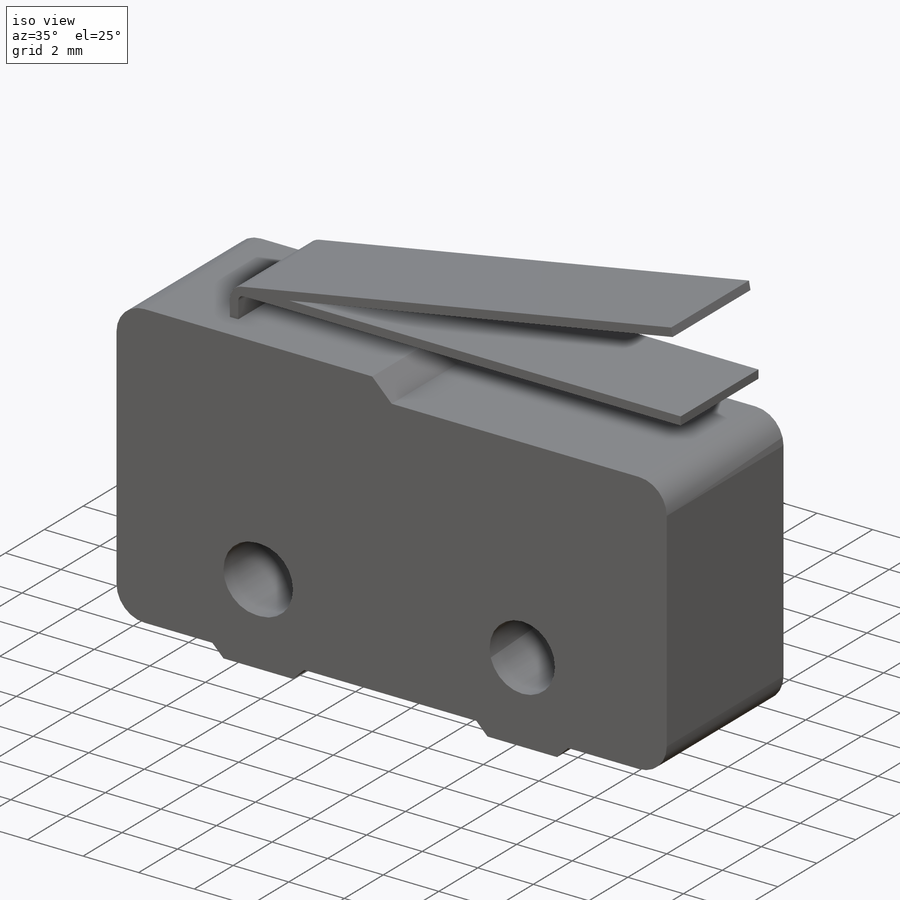
[diagram: iso view]
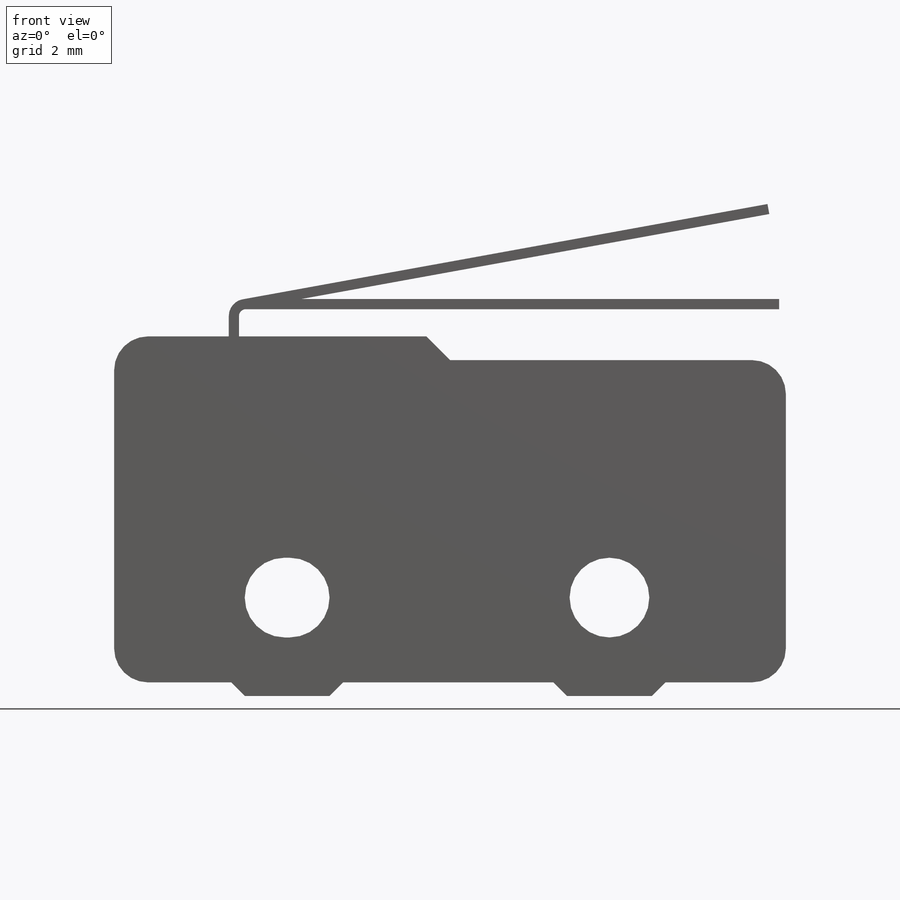
[diagram: front view]
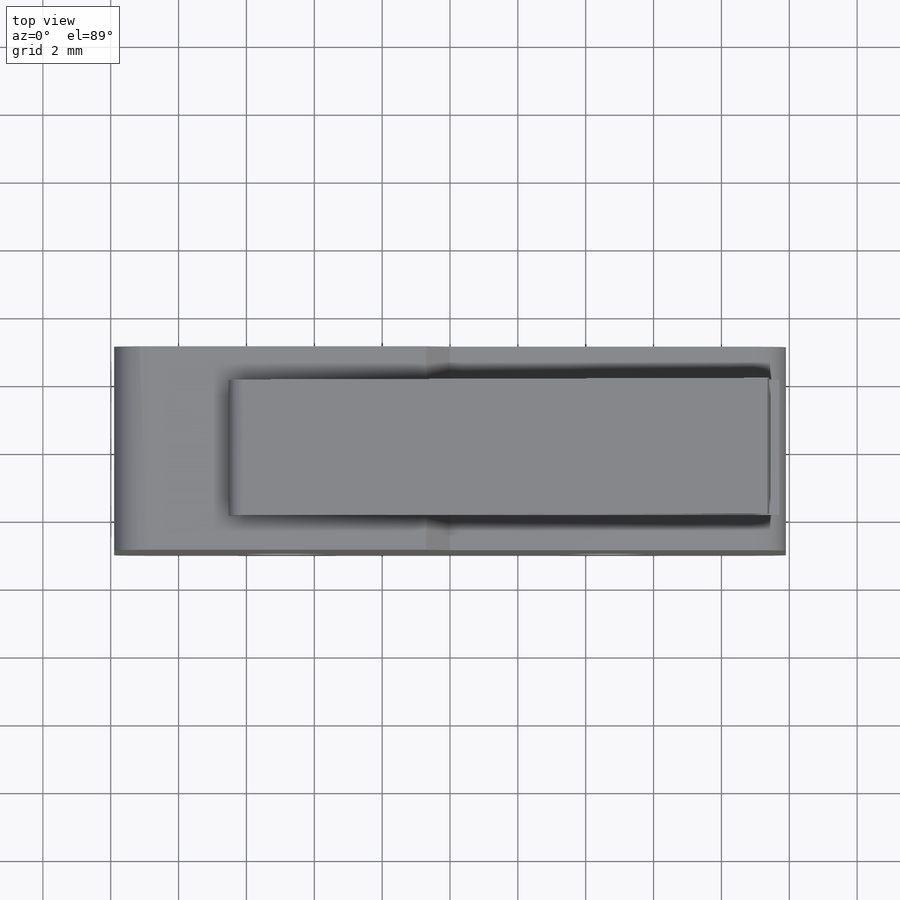
[diagram: top view]
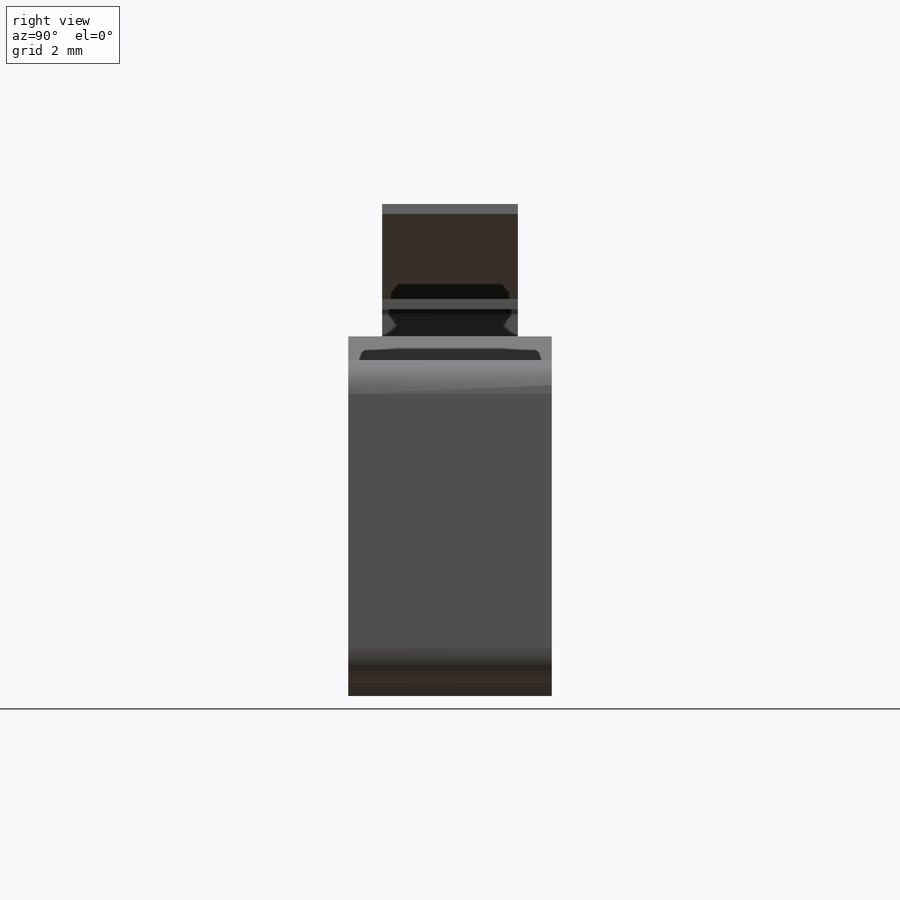
[diagram: right view]
SOLIDWORKS PART (.sldprt)
format: sldprt  version: not decoded by parser v0  size: 230,912 bytes
history: native  units: mm
features: sketch x3, extrude x3, material x1, fillet x1 (+12 scaffold rows collapsed)
feature tree (20):
  scaffold x12  (default folders/planes/origin — collapsed)
  material  "Material <not specified>"
  sketch  "Sketch1"  dims[c1.D6=2.5mm c1.D7=2.35mm c1.D8=1.175mm c1.D1=~40.344949mm c1.D2=~85.484756mm c2.D1=9.5mm c2.D2=10.2mm c2.D3=19.8mm c2.D4=0.7mm c2.D5=9.9mm c2.D8=9.5mm c2.D9=2.5mm c2.D6=2.35mm c3.D8=2.5mm c3.D9=9.5mm c3.D10=2.5mm c3.D11=5.2mm c3.D12=2.9mm c3.D13=2.5mm c3.D14=~1.579788mm]
  extrude  "Boss-Extrude1"  Depth=6mm
  fillet  "Fillet1"  Radius=1mm
  sketch  "Sketch2"  dims[c1.D1=~0.861387mm c1.D3=2.35mm c1.D4=0.5mm c2.D1=14.5mm c2.D2=3.38mm c2.D3=8.8mm c2.D6=0.3mm c2.D5=0.3mm]
  extrude  "Boss-Extrude3"  Depth=4mm
  sketch  "Sketch4"  dims[D1=2.8mm D3=0.3mm D2=0.3mm]
  extrude  "Boss-Extrude4"  Depth=4mm
decode coverage: 7 of 7 modeling features carry decoded parameters
note: ~ marks probable driven/reference dimensions
note: suppression state not decoded; provenance and decode notes live in map.json
